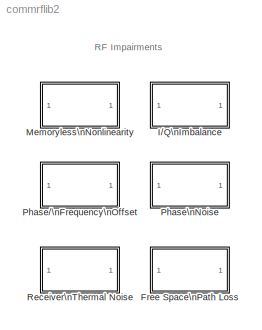
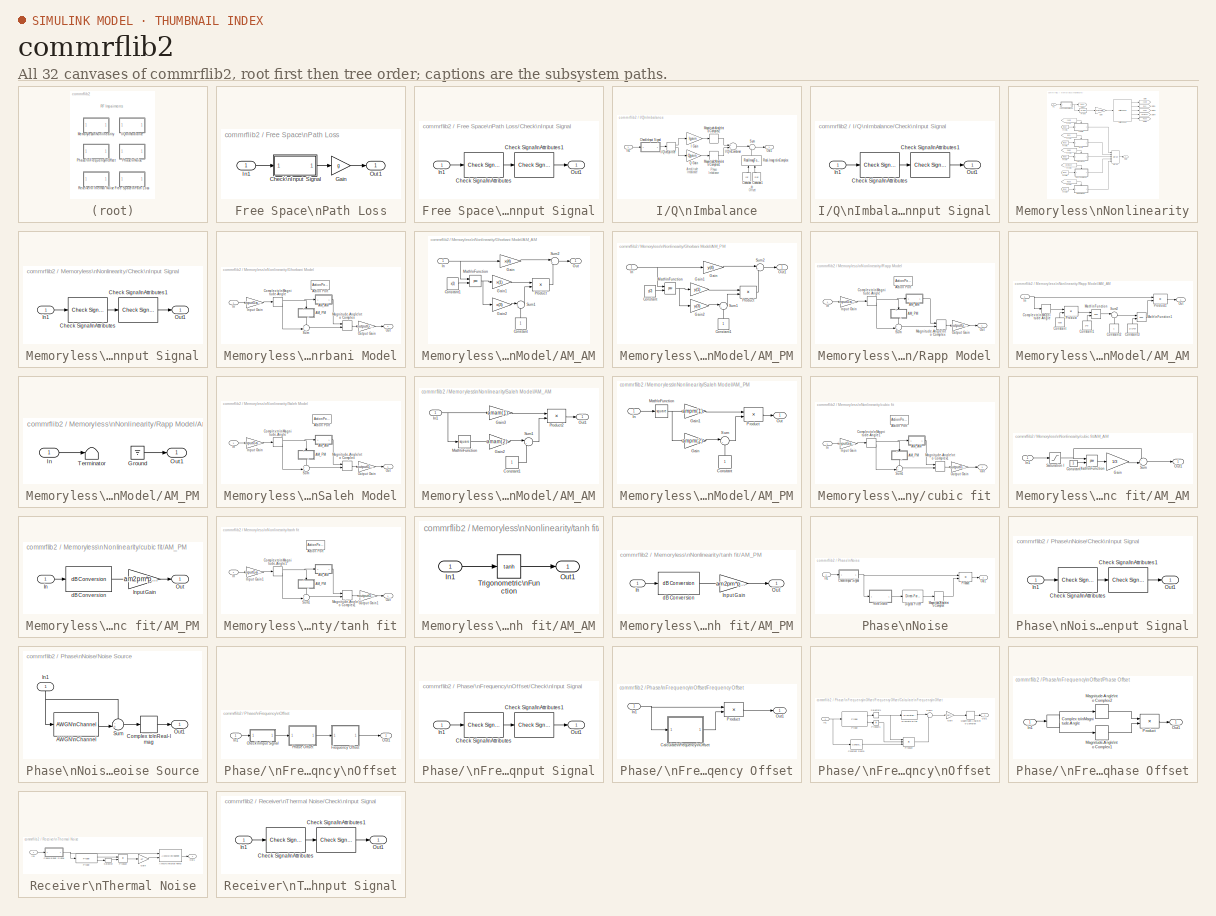
[diagram: thumbnail index - all 32 canvases of the model, root first then tree order]
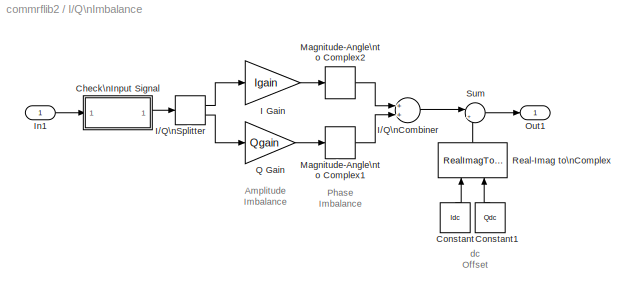
MODEL commrflib2
KIND library
BLOCK [SubSystem] Free Space\nPath Loss
  MaskCallbackString = if strcmp(get_param(gcb,'mode'),'Decibels'),\n\n	set_param(gcb,'maskvisibilities',{'on' 'on' 'off' 'off'});\n\nelse\n\n	set_param(gcb,'maskvisibilities',{'on' 'off' 'on' 'on'});\n\nend|||
  MaskDescription = Reduce the amplitude of the input signal by the amount specified.  The loss can be specified directly using the \"Decibels\" mode, or indirectly using the \"Distance and Frequency\" mode.\n\nThe reciprocal of the loss is applied as a gain, e.g., a loss of +20 dB, which reduces the signal by a factor of 10, corresponds to a gain value of 0.1.\n\nNote:  The decibel amount shown on the mask is rounde...<+28ch>
  MaskDisplay = fprintf(s)
  MaskEnableString = on,on,on,on
  MaskHelp = helpview(commbhelp)
  MaskIconFrame = on
  MaskIconOpaque = on
  MaskIconRotate = none
  MaskIconUnits = autoscale
  MaskInitialization = if mode == 1\n\n	loss = 10.^(0.05*dB);\n\nelse\n\n	c = 299792458;\n\n	loss = 4*pi*d*1e3*fc*1e6/c;\n\nend\n\ng = 1/loss;\n\nlossdB = 20*log10(loss);\n\n\n\nif isempty(dB) | (sum(size(dB)) > 2),\n\n	dB = 0; g = 0;\n\n	s = ['Free Space\\nPath Loss'];\n\nelse\n\n	s = sprintf('Free Space\\nPath Loss\\n%0.0f dB',lossdB);\n\nend
  MaskPromptString = Mode:|Loss (dB):|Distance (km):|Carrier frequency (MHz):
  MaskStyleString = popup(Decibels|Distance and Frequency),edit,edit,edit
  MaskToolTipString = on,on,on,on
  MaskTunableValueString = on,on,on,on
  MaskType = Free Space Path Loss
  MaskValueString = Distance and Frequency|10|0.100|1920
  MaskVarAliasString = ,,,
  MaskVariables = mode=@1;dB=@2;d=@3;fc=@4;
  MaskVisibilityString = on,off,on,on
  Ports = [1, 1]
  TreatAsAtomicUnit = off
BLOCK [SubSystem] Free Space\nPath Loss/Check\nInput Signal
  MaskDisplay = disp('Check\\nInput Signal');
  MaskIconFrame = on
  MaskIconOpaque = on
  MaskIconRotate = none
  MaskIconUnits = autoscale
  Ports = [1, 1]
  TreatAsAtomicUnit = off
BLOCK [Reference] Free Space\nPath Loss/Check\nInput Signal/Check Signal\nAttributes  REF=dspsigattribs/Check Signal\nAttributes
  Complexity = Complex
  DatatypeCheckMethod = Ignore
  DatatypeGeneral = Boolean
  Dimensions = Column vector (2-D) or scalar
  DimsCheckMethod = Is...
  DtypeFixedSpecific = Any fixed-point
  DtypeFloatSpecific = Any floating-point
  DtypeIntSpecific = Any integer
  Frame = Ignore
  Ports = [1, 1]
  SampleMode = Ignore
  SigAttribCheckMethod = Does not match attributes exactly
  SourceBlock = dspsigattribs/Check Signal\nAttributes
  SourceType = Check Signal Attributes
BLOCK [Reference] Free Space\nPath Loss/Check\nInput Signal/Check Signal\nAttributes1  REF=dspsigattribs/Check Signal\nAttributes
  Complexity = Ignore
  DatatypeCheckMethod = Ignore
  DatatypeGeneral = Boolean
  Dimensions = Vector (1-D or 2-D)
  DimsCheckMethod = Is...
  DtypeFixedSpecific = Any fixed-point
  DtypeFloatSpecific = Any floating-point
  DtypeIntSpecific = Any integer
  Frame = Sample-based
  Ports = [1, 1]
  SampleMode = Ignore
  SigAttribCheckMethod = Matches attributes exactly
  SourceBlock = dspsigattribs/Check Signal\nAttributes
  SourceType = Check Signal Attributes
BLOCK [Inport] Free Space\nPath Loss/Check\nInput Signal/In1
  IconDisplay = Port number
BLOCK [Outport] Free Space\nPath Loss/Check\nInput Signal/Out1
  IconDisplay = Port number
BLOCK [Gain] Free Space\nPath Loss/Gain
  Gain = g
BLOCK [Inport] Free Space\nPath Loss/In1
  IconDisplay = Port number
BLOCK [Outport] Free Space\nPath Loss/Out1
  IconDisplay = Port number
BLOCK [SubSystem] I//Q\nImbalance
  MaskCallbackString = |||
  MaskDescription = Complex baseband model of the signal impairments caused by imbalances between in-phase and quadrature receiver components.
  MaskDisplay = disp('I/Q\\nImbalance');
  MaskEnableString = on,on,on,on
  MaskHelp = helpview(commbhelp)
  MaskIconFrame = on
  MaskIconOpaque = on
  MaskIconRotate = none
  MaskIconUnits = autoscale
  MaskInitialization = Igain = 10.^(0.5*[ampImbal]*.05);\nQgain = 10.^(0.5*[-ampImbal]*.05);\n
  MaskPromptString = I/Q amplitude imbalance (dB):|I/Q phase imbalance (deg):|I dc offset:|Q dc offset:
  MaskStyleString = edit,edit,edit,edit
  MaskToolTipString = on,on,on,on
  MaskTunableValueString = on,on,on,on
  MaskType = I/Q Imbalance
  MaskValueString = 0|0|0|0
  MaskVarAliasString = ,,,
  MaskVariables = ampImbal=@1;phsImbal=@2;Idc=@3;Qdc=@4;
  MaskVisibilityString = on,on,on,on
  Ports = [1, 1]
  TreatAsAtomicUnit = off
BLOCK [SubSystem] I//Q\nImbalance/Check\nInput Signal
  MaskDisplay = disp('Check\\nInput Signal');
  MaskIconFrame = on
  MaskIconOpaque = on
  MaskIconRotate = none
  MaskIconUnits = autoscale
  Ports = [1, 1]
  TreatAsAtomicUnit = off
BLOCK [Reference] I//Q\nImbalance/Check\nInput Signal/Check Signal\nAttributes  REF=dspsigattribs/Check Signal\nAttributes
  Complexity = Complex
  DatatypeCheckMethod = Ignore
  DatatypeGeneral = Boolean
  Dimensions = Column vector (2-D) or scalar
  DimsCheckMethod = Is...
  DtypeFixedSpecific = Any fixed-point
  DtypeFloatSpecific = Any floating-point
  DtypeIntSpecific = Any integer
  Frame = Ignore
  Ports = [1, 1]
  SampleMode = Ignore
  SigAttribCheckMethod = Does not match attributes exactly
  SourceBlock = dspsigattribs/Check Signal\nAttributes
  SourceType = Check Signal Attributes
BLOCK [Reference] I//Q\nImbalance/Check\nInput Signal/Check Signal\nAttributes1  REF=dspsigattribs/Check Signal\nAttributes
  Complexity = Ignore
  DatatypeCheckMethod = Ignore
  DatatypeGeneral = Boolean
  Dimensions = Vector (1-D or 2-D)
  DimsCheckMethod = Is...
  DtypeFixedSpecific = Any fixed-point
  DtypeFloatSpecific = Any floating-point
  DtypeIntSpecific = Any integer
  Frame = Sample-based
  Ports = [1, 1]
  SampleMode = Ignore
  SigAttribCheckMethod = Matches attributes exactly
  SourceBlock = dspsigattribs/Check Signal\nAttributes
  SourceType = Check Signal Attributes
BLOCK [Inport] I//Q\nImbalance/Check\nInput Signal/In1
  IconDisplay = Port number
BLOCK [Outport] I//Q\nImbalance/Check\nInput Signal/Out1
  IconDisplay = Port number
BLOCK [Constant] I//Q\nImbalance/Constant
  Value = Idc
BLOCK [Constant] I//Q\nImbalance/Constant1
  Value = Qdc
BLOCK [Gain] I//Q\nImbalance/I Gain
  Gain = Igain
BLOCK [Sum] I//Q\nImbalance/I//Q\nCombiner
  Ports = [2, 1]
BLOCK [ComplexToRealImag] I//Q\nImbalance/I//Q\nSplitter
  Output = Real and imag
  Ports = [1, 2]
BLOCK [Inport] I//Q\nImbalance/In1
  IconDisplay = Port number
BLOCK [MagnitudeAngleToComplex] I//Q\nImbalance/Magnitude-Angle\nto Complex1
  ConstantPart = pi/2+0.5*phsImbal*pi/180
  Input = Magnitude
  Ports = [1, 1]
BLOCK [MagnitudeAngleToComplex] I//Q\nImbalance/Magnitude-Angle\nto Complex2
  ConstantPart = -0.5*phsImbal*pi/180
  Input = Magnitude
  Ports = [1, 1]
BLOCK [Outport] I//Q\nImbalance/Out1
  IconDisplay = Port number
BLOCK [Gain] I//Q\nImbalance/Q Gain
  Gain = Qgain
BLOCK [RealImagToComplex] I//Q\nImbalance/Real-Imag to\nComplex
  Input = Real and imag
  Ports = [2, 1]
BLOCK [Sum] I//Q\nImbalance/Sum
  IconShape = round
  Inputs = |++
  Ports = [2, 1]
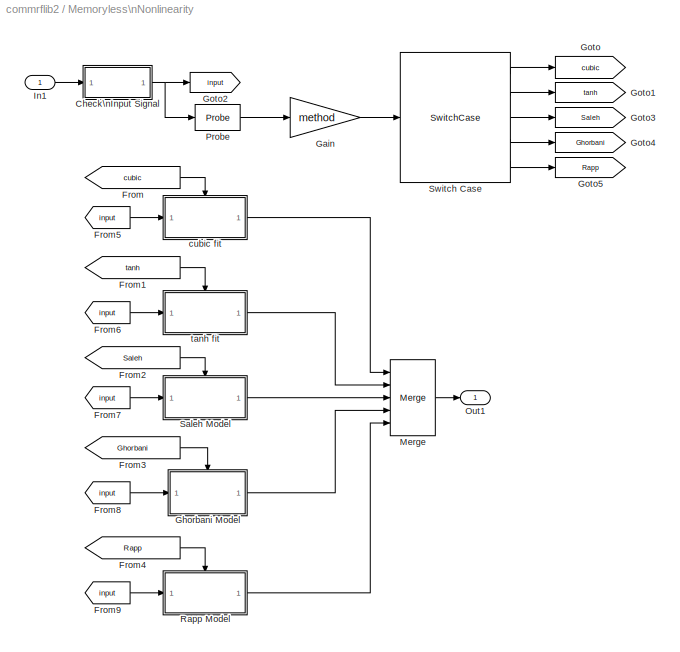
BLOCK [SubSystem] Memoryless\nNonlinearity
  MaskCallbackString = model_type = get_param(gcb,'model_select');\n\nswitch model_type\n\ncase 'Cubic polynomial',\n\n	set_param(gcb,'maskvisibilities',{'on' 'on' 'off' 'on' 'on' 'off' 'off' 'off' 'off' 'off' 'off' 'off'});\n\ncase 'Hyperbolic tangent',\n\n	set_param(gcb,'maskvisibilities',{'on' 'on' 'off' 'on' 'on' 'off' 'off' 'off' 'off' 'off' 'off' 'off'});\n\ncase 'Saleh model',\n\n	set_param(gcb,'maskvisibilities'...<+354ch>
  MaskDescription = Complex baseband model of memoryless nonlinearity.  \n\nTwo of the five methods (Cubic Polynomial and Hyperbolic Tangent) fit curves to measured data provided by the gain and third order intercept point (IIP3) parameters.  \n\nThe other three methods use models originated by Saleh, Ghorbani, and Rapp.  The Saleh and Ghorbani models are based on normalized nonlinear transfer functions.  Use the Inp...<+105ch>
  MaskDisplay = disp(str);
  MaskEnableString = on,on,on,on,on,on,on,on,on,on,on,on
  MaskHelp = helpview(commbhelp)
  MaskIconFrame = on
  MaskIconOpaque = on
  MaskIconRotate = none
  MaskIconUnits = autoscale
  MaskInitialization = switch model_select\ncase 'Cubic polynomial'\n    str = ['Cubic\\nPolynomial'];\n    method = 1;\n	c1 = 10^(linGaindB/20);\n    inputGain = sqrt(3/(10^((iip3-30)/10)));\n    outputGain = c1/inputGain;\ncase 'Hyperbolic tangent'\n    str = ['Hyperbolic\\nTangent'];\n    method = 2;\n	c1 = 10^(linGaindB/20);\n    inputGain = sqrt(3/(10^((iip3-30)/10)));\n    outputGain = c1/inputGain;\ncase 'Saleh m...<+400ch>
  MaskPromptString = Method:|Linear gain (dB):|Input scaling (dB):|IIP3 (dBm):|AM/PM conversion (degrees per dB):|AM/AM parameters [alpha beta]:|AM/PM parameters [alpha beta]:|AM/AM parameters [x1 x2 x3 x4]:|AM/PM parameters [y1 y2 y3 y4]:|Smoothness factor:|Output scaling (dB):|Output saturation level:
  MaskSelfModifiable = on
  MaskStyleString = popup(Cubic polynomial|Hyperbolic tangent|Saleh model|Ghorbani model|Rapp model),edit,edit,edit,edit,edit,edit,edit,edit,edit,edit,edit
  MaskToolTipString = on,on,on,on,on,on,on,on,on,on,on,on
  MaskTunableValueString = on,on,on,on,on,on,on,on,on,on,on,on
  MaskType = Memoryless Nonlinearity
  MaskValueString = Cubic polynomial|0|0|30|0|[2.1587 1.1517]|[4.0033 9.1040]|[8.1081 1.5413 6.5202 -0.0718]|[4.6645 2.0965 10.88 -0.003]|0.5|0|1
  MaskVarAliasString = ,,,,,,,,,,,
  MaskVariables = model_select=&1;linGaindB=@2;GindB=@3;iip3=@4;am2pm=@5;amam=@6;ampm=@7;x=@8;y=@9;p=@10;GoutdB=@11;vsat=@12;
  MaskVisibilityString = on,on,off,on,on,off,off,off,off,off,off,off
  Ports = [1, 1]
  TreatAsAtomicUnit = off
BLOCK [SubSystem] Memoryless\nNonlinearity/Check\nInput Signal
  MaskDisplay = disp('Check\\nInput Signal');
  MaskIconFrame = on
  MaskIconOpaque = on
  MaskIconRotate = none
  MaskIconUnits = autoscale
  Ports = [1, 1]
  TreatAsAtomicUnit = off
BLOCK [Reference] Memoryless\nNonlinearity/Check\nInput Signal/Check Signal\nAttributes  REF=dspsigattribs/Check Signal\nAttributes
  Complexity = Complex
  DatatypeCheckMethod = Ignore
  DatatypeGeneral = Boolean
  Dimensions = Column vector (2-D) or scalar
  DimsCheckMethod = Is...
  DtypeFixedSpecific = Any fixed-point
  DtypeFloatSpecific = Any floating-point
  DtypeIntSpecific = Any integer
  Frame = Ignore
  Ports = [1, 1]
  SampleMode = Ignore
  SigAttribCheckMethod = Does not match attributes exactly
  SourceBlock = dspsigattribs/Check Signal\nAttributes
  SourceType = Check Signal Attributes
BLOCK [Reference] Memoryless\nNonlinearity/Check\nInput Signal/Check Signal\nAttributes1  REF=dspsigattribs/Check Signal\nAttributes
  Complexity = Ignore
  DatatypeCheckMethod = Ignore
  DatatypeGeneral = Boolean
  Dimensions = Vector (1-D or 2-D)
  DimsCheckMethod = Is...
  DtypeFixedSpecific = Any fixed-point
  DtypeFloatSpecific = Any floating-point
  DtypeIntSpecific = Any integer
  Frame = Sample-based
  Ports = [1, 1]
  SampleMode = Ignore
  SigAttribCheckMethod = Matches attributes exactly
  SourceBlock = dspsigattribs/Check Signal\nAttributes
  SourceType = Check Signal Attributes
BLOCK [Inport] Memoryless\nNonlinearity/Check\nInput Signal/In1
  IconDisplay = Port number
BLOCK [Outport] Memoryless\nNonlinearity/Check\nInput Signal/Out1
  IconDisplay = Port number
BLOCK [From] Memoryless\nNonlinearity/From
  CloseFcn = tagdialog Close
  GotoTag = cubic
BLOCK [From] Memoryless\nNonlinearity/From1
  CloseFcn = tagdialog Close
  GotoTag = tanh
BLOCK [From] Memoryless\nNonlinearity/From2
  CloseFcn = tagdialog Close
  GotoTag = Saleh
BLOCK [From] Memoryless\nNonlinearity/From3
  CloseFcn = tagdialog Close
  GotoTag = Ghorbani
BLOCK [From] Memoryless\nNonlinearity/From4
  CloseFcn = tagdialog Close
  GotoTag = Rapp
BLOCK [From] Memoryless\nNonlinearity/From5
  CloseFcn = tagdialog Close
  GotoTag = input
BLOCK [From] Memoryless\nNonlinearity/From6
  CloseFcn = tagdialog Close
  GotoTag = input
BLOCK [From] Memoryless\nNonlinearity/From7
  CloseFcn = tagdialog Close
  GotoTag = input
BLOCK [From] Memoryless\nNonlinearity/From8
  CloseFcn = tagdialog Close
  GotoTag = input
BLOCK [From] Memoryless\nNonlinearity/From9
  CloseFcn = tagdialog Close
  GotoTag = input
BLOCK [Gain] Memoryless\nNonlinearity/Gain
  Gain = method
BLOCK [SubSystem] Memoryless\nNonlinearity/Ghorbani Model
  Ports = [1, 1, 0, 0, 0, 0, 0, 1]
  TreatAsAtomicUnit = on
BLOCK [SubSystem] Memoryless\nNonlinearity/Ghorbani Model/AM_AM
  MaskDisplay = disp('AM/AM')
  MaskIconFrame = on
  MaskIconOpaque = on
  MaskIconRotate = none
  MaskIconUnits = autoscale
  Ports = [1, 1]
  TreatAsAtomicUnit = off
BLOCK [Constant] Memoryless\nNonlinearity/Ghorbani Model/AM_AM/Constant
BLOCK [Constant] Memoryless\nNonlinearity/Ghorbani Model/AM_AM/Constant1
  Value = x(2)
BLOCK [Gain] Memoryless\nNonlinearity/Ghorbani Model/AM_AM/Gain
  Gain = x(4)
BLOCK [Gain] Memoryless\nNonlinearity/Ghorbani Model/AM_AM/Gain1
  Gain = x(1)
BLOCK [Gain] Memoryless\nNonlinearity/Ghorbani Model/AM_AM/Gain2
  Gain = x(3)
BLOCK [Inport] Memoryless\nNonlinearity/Ghorbani Model/AM_AM/In
  IconDisplay = Port number
BLOCK [Math] Memoryless\nNonlinearity/Ghorbani Model/AM_AM/Math\nFunction
  Operator = pow
  Ports = [2, 1]
BLOCK [Outport] Memoryless\nNonlinearity/Ghorbani Model/AM_AM/Out
  IconDisplay = Port number
BLOCK [Product] Memoryless\nNonlinearity/Ghorbani Model/AM_AM/Product
  Inputs = */
  Ports = [2, 1]
  RndMeth = Floor
BLOCK [Sum] Memoryless\nNonlinearity/Ghorbani Model/AM_AM/Sum1
  IconShape = round
  Inputs = |++
  Ports = [2, 1]
BLOCK [Sum] Memoryless\nNonlinearity/Ghorbani Model/AM_AM/Sum2
  IconShape = round
  Inputs = |++
  Ports = [2, 1]
BLOCK [SubSystem] Memoryless\nNonlinearity/Ghorbani Model/AM_PM
  MaskDisplay = disp('AM/PM')
  MaskIconFrame = on
  MaskIconOpaque = on
  MaskIconRotate = none
  MaskIconUnits = autoscale
  Ports = [1, 1]
  TreatAsAtomicUnit = off
BLOCK [Constant] Memoryless\nNonlinearity/Ghorbani Model/AM_PM/Constant
  Value = y(2)
BLOCK [Constant] Memoryless\nNonlinearity/Ghorbani Model/AM_PM/Constant1
BLOCK [Gain] Memoryless\nNonlinearity/Ghorbani Model/AM_PM/Gain
  Gain = y(4)
BLOCK [Gain] Memoryless\nNonlinearity/Ghorbani Model/AM_PM/Gain1
  Gain = y(1)
BLOCK [Gain] Memoryless\nNonlinearity/Ghorbani Model/AM_PM/Gain2
  Gain = y(3)
BLOCK [Inport] Memoryless\nNonlinearity/Ghorbani Model/AM_PM/In
  IconDisplay = Port number
BLOCK [Math] Memoryless\nNonlinearity/Ghorbani Model/AM_PM/Math\nFunction
  Operator = pow
  Ports = [2, 1]
BLOCK [Outport] Memoryless\nNonlinearity/Ghorbani Model/AM_PM/Out1
  IconDisplay = Port number
BLOCK [Product] Memoryless\nNonlinearity/Ghorbani Model/AM_PM/Product
  Inputs = */
  Ports = [2, 1]
  RndMeth = Floor
BLOCK [Sum] Memoryless\nNonlinearity/Ghorbani Model/AM_PM/Sum1
  IconShape = round
  Inputs = |++
  Ports = [2, 1]
BLOCK [Sum] Memoryless\nNonlinearity/Ghorbani Model/AM_PM/Sum2
  IconShape = round
  Inputs = |++
  Ports = [2, 1]
BLOCK [ActionPort] Memoryless\nNonlinearity/Ghorbani Model/Action Port
BLOCK [ComplexToMagnitudeAngle] Memoryless\nNonlinearity/Ghorbani Model/Complex to\nMagnitude-Angle
  Output = Magnitude and angle
  Ports = [1, 2]
BLOCK [Inport] Memoryless\nNonlinearity/Ghorbani Model/In
  IconDisplay = Port number
BLOCK [Gain] Memoryless\nNonlinearity/Ghorbani Model/Input Gain
  Gain = inputGain
BLOCK [MagnitudeAngleToComplex] Memoryless\nNonlinearity/Ghorbani Model/Magnitude-Angle\nto Complex
  Input = Magnitude and angle
  Ports = [2, 1]
BLOCK [Outport] Memoryless\nNonlinearity/Ghorbani Model/Out
  IconDisplay = Port number
BLOCK [Gain] Memoryless\nNonlinearity/Ghorbani Model/Output Gain
  Gain = outputGain
BLOCK [Sum] Memoryless\nNonlinearity/Ghorbani Model/Sum
  IconShape = round
  Inputs = ++|
  Ports = [2, 1]
BLOCK [Goto] Memoryless\nNonlinearity/Goto
  GotoTag = cubic
  TagVisibility = local
BLOCK [Goto] Memoryless\nNonlinearity/Goto1
  GotoTag = tanh
  TagVisibility = local
BLOCK [Goto] Memoryless\nNonlinearity/Goto2
  GotoTag = input
  TagVisibility = local
BLOCK [Goto] Memoryless\nNonlinearity/Goto3
  GotoTag = Saleh
  TagVisibility = local
BLOCK [Goto] Memoryless\nNonlinearity/Goto4
  GotoTag = Ghorbani
  TagVisibility = local
BLOCK [Goto] Memoryless\nNonlinearity/Goto5
  GotoTag = Rapp
  TagVisibility = local
BLOCK [Inport] Memoryless\nNonlinearity/In1
  IconDisplay = Port number
BLOCK [Merge] Memoryless\nNonlinearity/Merge
  Inputs = 5
  Ports = [5, 1]
BLOCK [Outport] Memoryless\nNonlinearity/Out1
  IconDisplay = Port number
BLOCK [Probe] Memoryless\nNonlinearity/Probe
  Ports = [1, 1]
  ProbeSampleTime = off
  ProbeWidth = off
BLOCK [SubSystem] Memoryless\nNonlinearity/Rapp Model
  Ports = [1, 1, 0, 0, 0, 0, 0, 1]
  TreatAsAtomicUnit = on
BLOCK [SubSystem] Memoryless\nNonlinearity/Rapp Model/AM_AM
  MaskDisplay = disp('AM/AM')
  MaskIconFrame = on
  MaskIconOpaque = on
  MaskIconRotate = none
  MaskIconUnits = autoscale
  Ports = [1, 1]
  TreatAsAtomicUnit = off
BLOCK [ComplexToMagnitudeAngle] Memoryless\nNonlinearity/Rapp Model/AM_AM/Complex to\nMagnitude-Angle
  Output = Magnitude
  Ports = [1, 1]
BLOCK [Constant] Memoryless\nNonlinearity/Rapp Model/AM_AM/Constant
  Value = vsat
BLOCK [Constant] Memoryless\nNonlinearity/Rapp Model/AM_AM/Constant1
  Value = 2*p
BLOCK [Constant] Memoryless\nNonlinearity/Rapp Model/AM_AM/Constant2
BLOCK [Constant] Memoryless\nNonlinearity/Rapp Model/AM_AM/Constant3
  Value = 1/(2*p)
BLOCK [Inport] Memoryless\nNonlinearity/Rapp Model/AM_AM/In
  IconDisplay = Port number
BLOCK [Math] Memoryless\nNonlinearity/Rapp Model/AM_AM/Math\nFunction
  Operator = pow
  Ports = [2, 1]
BLOCK [Math] Memoryless\nNonlinearity/Rapp Model/AM_AM/Math\nFunction1
  Operator = pow
  Ports = [2, 1]
BLOCK [Outport] Memoryless\nNonlinearity/Rapp Model/AM_AM/Out
  IconDisplay = Port number
BLOCK [Product] Memoryless\nNonlinearity/Rapp Model/AM_AM/Product
  Inputs = */
  Ports = [2, 1]
  RndMeth = Floor
BLOCK [Product] Memoryless\nNonlinearity/Rapp Model/AM_AM/Product1
  Inputs = */
  Ports = [2, 1]
  RndMeth = Floor
BLOCK [Sum] Memoryless\nNonlinearity/Rapp Model/AM_AM/Sum2
  IconShape = round
  Inputs = |++
  Ports = [2, 1]
BLOCK [SubSystem] Memoryless\nNonlinearity/Rapp Model/AM_PM
  MaskDisplay = disp('AM/PM')
  MaskIconFrame = on
  MaskIconOpaque = on
  MaskIconRotate = none
  MaskIconUnits = autoscale
  Ports = [1, 1]
  TreatAsAtomicUnit = off
BLOCK [Ground] Memoryless\nNonlinearity/Rapp Model/AM_PM/Ground
BLOCK [Inport] Memoryless\nNonlinearity/Rapp Model/AM_PM/In
  IconDisplay = Port number
BLOCK [Outport] Memoryless\nNonlinearity/Rapp Model/AM_PM/Out1
  IconDisplay = Port number
BLOCK [Terminator] Memoryless\nNonlinearity/Rapp Model/AM_PM/Terminator
BLOCK [ActionPort] Memoryless\nNonlinearity/Rapp Model/Action Port
BLOCK [ComplexToMagnitudeAngle] Memoryless\nNonlinearity/Rapp Model/Complex to\nMagnitude-Angle
  Output = Magnitude and angle
  Ports = [1, 2]
BLOCK [Inport] Memoryless\nNonlinearity/Rapp Model/In
  IconDisplay = Port number
BLOCK [Gain] Memoryless\nNonlinearity/Rapp Model/Input Gain
  Gain = inputGain
BLOCK [MagnitudeAngleToComplex] Memoryless\nNonlinearity/Rapp Model/Magnitude-Angle\nto Complex
  Input = Magnitude and angle
  Ports = [2, 1]
BLOCK [Outport] Memoryless\nNonlinearity/Rapp Model/Out
  IconDisplay = Port number
BLOCK [Gain] Memoryless\nNonlinearity/Rapp Model/Output Gain
  Gain = outputGain
BLOCK [Sum] Memoryless\nNonlinearity/Rapp Model/Sum
  IconShape = round
  Inputs = ++|
  Ports = [2, 1]
BLOCK [SubSystem] Memoryless\nNonlinearity/Saleh Model
  Ports = [1, 1, 0, 0, 0, 0, 0, 1]
  TreatAsAtomicUnit = on
BLOCK [SubSystem] Memoryless\nNonlinearity/Saleh Model/AM_AM
  MaskDisplay = disp('AM/AM')
  MaskIconFrame = on
  MaskIconOpaque = on
  MaskIconRotate = none
  MaskIconUnits = autoscale
  Ports = [1, 1]
  TreatAsAtomicUnit = off
BLOCK [Constant] Memoryless\nNonlinearity/Saleh Model/AM_AM/Constant1
BLOCK [Gain] Memoryless\nNonlinearity/Saleh Model/AM_AM/Gain2
  Gain = amam(2)
BLOCK [Gain] Memoryless\nNonlinearity/Saleh Model/AM_AM/Gain3
  Gain = amam(1)
BLOCK [Inport] Memoryless\nNonlinearity/Saleh Model/AM_AM/In1
  IconDisplay = Port number
BLOCK [Math] Memoryless\nNonlinearity/Saleh Model/AM_AM/Math\nFunction
  Operator = square
  Ports = [1, 1]
BLOCK [Outport] Memoryless\nNonlinearity/Saleh Model/AM_AM/Out1
  IconDisplay = Port number
BLOCK [Product] Memoryless\nNonlinearity/Saleh Model/AM_AM/Product2
  Inputs = */
  Ports = [2, 1]
  RndMeth = Floor
BLOCK [Sum] Memoryless\nNonlinearity/Saleh Model/AM_AM/Sum1
  IconShape = round
  Inputs = |++
  Ports = [2, 1]
BLOCK [SubSystem] Memoryless\nNonlinearity/Saleh Model/AM_PM
  MaskDisplay = disp('AM/PM')
  MaskIconFrame = on
  MaskIconOpaque = on
  MaskIconRotate = none
  MaskIconUnits = autoscale
  Ports = [1, 1]
  TreatAsAtomicUnit = off
BLOCK [Constant] Memoryless\nNonlinearity/Saleh Model/AM_PM/Constant
BLOCK [Gain] Memoryless\nNonlinearity/Saleh Model/AM_PM/Gain
  Gain = ampm(2)
BLOCK [Gain] Memoryless\nNonlinearity/Saleh Model/AM_PM/Gain1
  Gain = ampm(1)
BLOCK [Inport] Memoryless\nNonlinearity/Saleh Model/AM_PM/In
  IconDisplay = Port number
BLOCK [Math] Memoryless\nNonlinearity/Saleh Model/AM_PM/Math\nFunction
  Operator = square
  Ports = [1, 1]
BLOCK [Outport] Memoryless\nNonlinearity/Saleh Model/AM_PM/Out
  IconDisplay = Port number
BLOCK [Product] Memoryless\nNonlinearity/Saleh Model/AM_PM/Product
  Inputs = */
  Ports = [2, 1]
  RndMeth = Floor
BLOCK [Sum] Memoryless\nNonlinearity/Saleh Model/AM_PM/Sum
  IconShape = round
  Inputs = |++
  Ports = [2, 1]
BLOCK [ActionPort] Memoryless\nNonlinearity/Saleh Model/Action Port
BLOCK [ComplexToMagnitudeAngle] Memoryless\nNonlinearity/Saleh Model/Complex to\nMagnitude-Angle
  Output = Magnitude and angle
  Ports = [1, 2]
BLOCK [Inport] Memoryless\nNonlinearity/Saleh Model/In
  IconDisplay = Port number
BLOCK [Gain] Memoryless\nNonlinearity/Saleh Model/Input Gain
  Gain = inputGain
BLOCK [MagnitudeAngleToComplex] Memoryless\nNonlinearity/Saleh Model/Magnitude-Angle\nto Complex
  Input = Magnitude and angle
  Ports = [2, 1]
BLOCK [Outport] Memoryless\nNonlinearity/Saleh Model/Out
  IconDisplay = Port number
BLOCK [Gain] Memoryless\nNonlinearity/Saleh Model/Output Gain
  Gain = outputGain
BLOCK [Sum] Memoryless\nNonlinearity/Saleh Model/Sum
  IconShape = round
  Inputs = ++|
  Ports = [2, 1]
BLOCK [SwitchCase] Memoryless\nNonlinearity/Switch Case
  CaseConditions = {1 2 3 4 5}
  CaseShowDefault = off
  Ports = [1, 5]
BLOCK [SubSystem] Memoryless\nNonlinearity/cubic fit
  Ports = [1, 1, 0, 0, 0, 0, 0, 1]
  TreatAsAtomicUnit = on
BLOCK [SubSystem] Memoryless\nNonlinearity/cubic fit/AM_AM
  MaskDisplay = disp('AM/AM')
  MaskIconFrame = on
  MaskIconOpaque = on
  MaskIconRotate = none
  MaskIconUnits = autoscale
  Ports = [1, 1]
  TreatAsAtomicUnit = off
BLOCK [Constant] Memoryless\nNonlinearity/cubic fit/AM_AM/Constant
  Value = 3
BLOCK [Gain] Memoryless\nNonlinearity/cubic fit/AM_AM/Gain
  Gain = 1/3
BLOCK [Inport] Memoryless\nNonlinearity/cubic fit/AM_AM/In1
  IconDisplay = Port number
BLOCK [Math] Memoryless\nNonlinearity/cubic fit/AM_AM/Math\nFunction
  Operator = pow
  Ports = [2, 1]
BLOCK [Outport] Memoryless\nNonlinearity/cubic fit/AM_AM/Out1
  IconDisplay = Port number
BLOCK [Saturate] Memoryless\nNonlinearity/cubic fit/AM_AM/Saturation I
  LowerLimit = -1
  UpperLimit = 1
BLOCK [Sum] Memoryless\nNonlinearity/cubic fit/AM_AM/Sum
  IconShape = round
  Inputs = +-|
  Ports = [2, 1]
BLOCK [SubSystem] Memoryless\nNonlinearity/cubic fit/AM_PM
  MaskDisplay = disp('AM/PM')
  MaskIconFrame = on
  MaskIconOpaque = on
  MaskIconRotate = none
  MaskIconUnits = autoscale
  Ports = [1, 1]
  TreatAsAtomicUnit = off
BLOCK [Inport] Memoryless\nNonlinearity/cubic fit/AM_PM/In
  IconDisplay = Port number
BLOCK [Gain] Memoryless\nNonlinearity/cubic fit/AM_PM/Input Gain
  Gain = am2pm*pi/180
BLOCK [Outport] Memoryless\nNonlinearity/cubic fit/AM_PM/Out
  IconDisplay = Port number
BLOCK [Reference] Memoryless\nNonlinearity/cubic fit/AM_PM/dB Conversion  REF=dspmathops/dB Conversion
  Ports = [1, 1]
  R = 1
  SourceBlock = dspmathops/dB Conversion
  SourceType = dB Conversion
  dBtype = dB
  fuzz = on
  intype = Amplitude
BLOCK [ActionPort] Memoryless\nNonlinearity/cubic fit/Action Port
BLOCK [ComplexToMagnitudeAngle] Memoryless\nNonlinearity/cubic fit/Complex to\nMagnitude-Angle1
  Output = Magnitude and angle
  Ports = [1, 2]
BLOCK [Inport] Memoryless\nNonlinearity/cubic fit/In
  IconDisplay = Port number
BLOCK [Gain] Memoryless\nNonlinearity/cubic fit/Input Gain
  Gain = inputGain
BLOCK [MagnitudeAngleToComplex] Memoryless\nNonlinearity/cubic fit/Magnitude-Angle\nto Complex1
  Input = Magnitude and angle
  Ports = [2, 1]
BLOCK [Outport] Memoryless\nNonlinearity/cubic fit/Out
  IconDisplay = Port number
BLOCK [Gain] Memoryless\nNonlinearity/cubic fit/Output Gain
  Gain = outputGain
BLOCK [Sum] Memoryless\nNonlinearity/cubic fit/Sum1
  IconShape = round
  Inputs = ++|
  Ports = [2, 1]
BLOCK [SubSystem] Memoryless\nNonlinearity/tanh fit
  Ports = [1, 1, 0, 0, 0, 0, 0, 1]
  TreatAsAtomicUnit = on
BLOCK [SubSystem] Memoryless\nNonlinearity/tanh fit/AM_AM
  MaskDisplay = disp('AM/AM')
  MaskIconFrame = on
  MaskIconOpaque = on
  MaskIconRotate = none
  MaskIconUnits = autoscale
  Ports = [1, 1]
  TreatAsAtomicUnit = off
BLOCK [Inport] Memoryless\nNonlinearity/tanh fit/AM_AM/In1
  IconDisplay = Port number
BLOCK [Outport] Memoryless\nNonlinearity/tanh fit/AM_AM/Out1
  IconDisplay = Port number
BLOCK [Trigonometry] Memoryless\nNonlinearity/tanh fit/AM_AM/Trigonometric\nFunction
  Operator = tanh
  Ports = [1, 1]
BLOCK [SubSystem] Memoryless\nNonlinearity/tanh fit/AM_PM
  MaskDisplay = disp('AM/PM')
  MaskIconFrame = on
  MaskIconOpaque = on
  MaskIconRotate = none
  MaskIconUnits = autoscale
  Ports = [1, 1]
  TreatAsAtomicUnit = off
BLOCK [Inport] Memoryless\nNonlinearity/tanh fit/AM_PM/In
  IconDisplay = Port number
BLOCK [Gain] Memoryless\nNonlinearity/tanh fit/AM_PM/Input Gain
  Gain = am2pm*pi/180
BLOCK [Outport] Memoryless\nNonlinearity/tanh fit/AM_PM/Out
  IconDisplay = Port number
BLOCK [Reference] Memoryless\nNonlinearity/tanh fit/AM_PM/dB Conversion  REF=dspmathops/dB Conversion
  Ports = [1, 1]
  R = 1
  SourceBlock = dspmathops/dB Conversion
  SourceType = dB Conversion
  dBtype = dB
  fuzz = on
  intype = Amplitude
BLOCK [ActionPort] Memoryless\nNonlinearity/tanh fit/Action Port
BLOCK [ComplexToMagnitudeAngle] Memoryless\nNonlinearity/tanh fit/Complex to\nMagnitude-Angle1
  Output = Magnitude and angle
  Ports = [1, 2]
BLOCK [Inport] Memoryless\nNonlinearity/tanh fit/In
  IconDisplay = Port number
BLOCK [Gain] Memoryless\nNonlinearity/tanh fit/Input Gain1
  Gain = inputGain
BLOCK [MagnitudeAngleToComplex] Memoryless\nNonlinearity/tanh fit/Magnitude-Angle\nto Complex1
  Input = Magnitude and angle
  Ports = [2, 1]
BLOCK [Outport] Memoryless\nNonlinearity/tanh fit/Out
  IconDisplay = Port number
BLOCK [Gain] Memoryless\nNonlinearity/tanh fit/Output Gain1
  Gain = outputGain
BLOCK [Sum] Memoryless\nNonlinearity/tanh fit/Sum1
  IconShape = round
  Inputs = ++|
  Ports = [2, 1]
BLOCK [SubSystem] Phase//\nFrequency\nOffset
  MaskCallbackString = |
  MaskDescription = Complex baseband model of residual phase and frequency offsets.
  MaskDisplay = disp('Phase/\\nFrequency\\nOffset');
  MaskEnableString = on,on
  MaskHelp = helpview(commbhelp)
  MaskIconFrame = on
  MaskIconOpaque = on
  MaskIconRotate = none
  MaskIconUnits = autoscale
  MaskPromptString = Frequency offset (Hz):|Phase offset (deg):
  MaskStyleString = edit,edit
  MaskToolTipString = on,on
  MaskTunableValueString = on,on
  MaskType = Phase/Frequency Offset
  MaskValueString = 0|0
  MaskVarAliasString = ,
  MaskVariables = freqOffset=@1;phaseOffset=@2;
  MaskVisibilityString = on,on
  Ports = [1, 1]
  TreatAsAtomicUnit = off
BLOCK [SubSystem] Phase//\nFrequency\nOffset/Check\nInput Signal
  MaskDisplay = disp('Check\\nInput Signal');
  MaskIconFrame = on
  MaskIconOpaque = on
  MaskIconRotate = none
  MaskIconUnits = autoscale
  Ports = [1, 1]
  TreatAsAtomicUnit = off
BLOCK [Reference] Phase//\nFrequency\nOffset/Check\nInput Signal/Check Signal\nAttributes  REF=dspsigattribs/Check Signal\nAttributes
  Complexity = Complex
  DatatypeCheckMethod = Ignore
  DatatypeGeneral = Boolean
  Dimensions = Column vector (2-D) or scalar
  DimsCheckMethod = Is...
  DtypeFixedSpecific = Any fixed-point
  DtypeFloatSpecific = Any floating-point
  DtypeIntSpecific = Any integer
  Frame = Ignore
  Ports = [1, 1]
  SampleMode = Ignore
  SigAttribCheckMethod = Does not match attributes exactly
  SourceBlock = dspsigattribs/Check Signal\nAttributes
  SourceType = Check Signal Attributes
BLOCK [Reference] Phase//\nFrequency\nOffset/Check\nInput Signal/Check Signal\nAttributes1  REF=dspsigattribs/Check Signal\nAttributes
  Complexity = Ignore
  DatatypeCheckMethod = Ignore
  DatatypeGeneral = Boolean
  Dimensions = Vector (1-D or 2-D)
  DimsCheckMethod = Is...
  DtypeFixedSpecific = Any fixed-point
  DtypeFloatSpecific = Any floating-point
  DtypeIntSpecific = Any integer
  Frame = Sample-based
  Ports = [1, 1]
  SampleMode = Ignore
  SigAttribCheckMethod = Matches attributes exactly
  SourceBlock = dspsigattribs/Check Signal\nAttributes
  SourceType = Check Signal Attributes
BLOCK [Inport] Phase//\nFrequency\nOffset/Check\nInput Signal/In1
  IconDisplay = Port number
BLOCK [Outport] Phase//\nFrequency\nOffset/Check\nInput Signal/Out1
  IconDisplay = Port number
BLOCK [SubSystem] Phase//\nFrequency\nOffset/Frequency Offset
  MaskDisplay = disp('Frequency\\nOffset');
  MaskIconFrame = on
  MaskIconOpaque = on
  MaskIconRotate = none
  MaskIconUnits = autoscale
  Ports = [1, 1]
  TreatAsAtomicUnit = off
BLOCK [SubSystem] Phase//\nFrequency\nOffset/Frequency Offset/Calculate\nFrequency\nOffset
  MaskDisplay = disp('Calculate\\nFrequency\\nOffset');
  MaskIconFrame = on
  MaskIconOpaque = on
  MaskIconRotate = none
  MaskIconUnits = autoscale
  Ports = [1, 1]
  TreatAsAtomicUnit = off
BLOCK [Reference] Phase//\nFrequency\nOffset/Frequency Offset/Calculate\nFrequency\nOffset/Constant Ramp  REF=dspsrcs4/Constant Ramp
  L = Rows
  Offset = 0
  Ports = [1, 1]
  Slope = 1
  SourceBlock = dspsrcs4/Constant Ramp
  SourceType = Constant Ramp
BLOCK [DiscreteFilter] Phase//\nFrequency\nOffset/Frequency Offset/Calculate\nFrequency\nOffset/Discrete Filter
  Denominator = [1 -1]
  Numerator = [0 1]
  SampleTime = -1
BLOCK [Gain] Phase//\nFrequency\nOffset/Frequency Offset/Calculate\nFrequency\nOffset/Gain
  Gain = 2*pi*freqOffset
BLOCK [Inport] Phase//\nFrequency\nOffset/Frequency Offset/Calculate\nFrequency\nOffset/In1
  IconDisplay = Port number
BLOCK [MagnitudeAngleToComplex] Phase//\nFrequency\nOffset/Frequency Offset/Calculate\nFrequency\nOffset/Magnitude-Angle\nto Complex
  ConstantPart = 1
  Input = Angle
  Ports = [1, 1]
BLOCK [Outport] Phase//\nFrequency\nOffset/Frequency Offset/Calculate\nFrequency\nOffset/Out1
  IconDisplay = Port number
BLOCK [Probe] Phase//\nFrequency\nOffset/Frequency Offset/Calculate\nFrequency\nOffset/Probe
  Ports = [1, 2]
  ProbeComplexSignal = off
  ProbeSignalDimensions = on
  ProbeWidth = off
BLOCK [Product] Phase//\nFrequency\nOffset/Frequency Offset/Calculate\nFrequency\nOffset/Product
  Inputs = */*
  Ports = [3, 1]
  RndMeth = Floor
BLOCK [Product] Phase//\nFrequency\nOffset/Frequency Offset/Calculate\nFrequency\nOffset/Product1
  Inputs = 1
  Ports = [1, 1]
  RndMeth = Floor
BLOCK [Selector] Phase//\nFrequency\nOffset/Frequency Offset/Calculate\nFrequency\nOffset/Selector1
  Elements = [1 ]
  InputPortWidth = 2
  Ports = [1, 1]
BLOCK [Sum] Phase//\nFrequency\nOffset/Frequency Offset/Calculate\nFrequency\nOffset/Sum1
  IconShape = round
  Inputs = |++
  Ports = [2, 1]
BLOCK [Inport] Phase//\nFrequency\nOffset/Frequency Offset/In1
  IconDisplay = Port number
BLOCK [Outport] Phase//\nFrequency\nOffset/Frequency Offset/Out1
  IconDisplay = Port number
BLOCK [Product] Phase//\nFrequency\nOffset/Frequency Offset/Product
  Ports = [2, 1]
  RndMeth = Floor
BLOCK [Inport] Phase//\nFrequency\nOffset/In1
  IconDisplay = Port number
BLOCK [Outport] Phase//\nFrequency\nOffset/Out1
  IconDisplay = Port number
BLOCK [SubSystem] Phase//\nFrequency\nOffset/Phase Offset
  MaskDisplay = disp('Phase\\nOffset');
  MaskIconFrame = on
  MaskIconOpaque = on
  MaskIconRotate = none
  MaskIconUnits = autoscale
  Ports = [1, 1]
  TreatAsAtomicUnit = off
BLOCK [ComplexToMagnitudeAngle] Phase//\nFrequency\nOffset/Phase Offset/Complex to\nMagnitude-Angle
  Output = Magnitude and angle
  Ports = [1, 2]
BLOCK [Inport] Phase//\nFrequency\nOffset/Phase Offset/In1
  IconDisplay = Port number
BLOCK [MagnitudeAngleToComplex] Phase//\nFrequency\nOffset/Phase Offset/Magnitude-Angle\nto Complex1
  ConstantPart = 1
  Input = Angle
  Ports = [1, 1]
BLOCK [MagnitudeAngleToComplex] Phase//\nFrequency\nOffset/Phase Offset/Magnitude-Angle\nto Complex2
  ConstantPart = phaseOffset*pi/180
  Input = Magnitude
  Ports = [1, 1]
BLOCK [Outport] Phase//\nFrequency\nOffset/Phase Offset/Out1
  IconDisplay = Port number
BLOCK [Product] Phase//\nFrequency\nOffset/Phase Offset/Product
  Ports = [2, 1]
  RndMeth = Floor
BLOCK [SubSystem] Phase\nNoise
  AttributesFormatString = \\n
  MaskCallbackString = ||
  MaskDescription = Complex baseband model of receiver phase noise.\n\nThe output of this block is noise with a spectrum characterized by a 1/f slope.  The level of the spectrum is specified by the noise power contained in a one hertz bandwidth offset from the carrier by a certain frequency.
  MaskDisplay = disp('Phase\\nNoise');
  MaskEnableString = on,on,on
  MaskHelp = helpview(commbhelp)
  MaskIconFrame = on
  MaskIconOpaque = on
  MaskIconRotate = none
  MaskIconUnits = autoscale
  MaskInitialization = if PhNs>0,\n	error('Phase noise level should be negative.');\nend\nnum = sqrt(2*pi*Fo*10^((PhNs)/10));\nif num>.1,\n	warning('Current parameters in phase noise block may produce inaccurate results.');\nend\nnum_taps = 64;\nden = zeros(1,num_taps);\nden(1) = 1;\nfor idx = 2:num_taps\n   den(idx) = (idx - 2.5) * den(idx-1) / (idx-1);\nend\n
  MaskPromptString = Phase noise level (dBc/Hz):|Frequency offset (Hz):|Initial seed:
  MaskSelfModifiable = on
  MaskStyleString = edit,edit,edit
  MaskToolTipString = on,on,on
  MaskTunableValueString = on,on,on
  MaskType = Phase Noise
  MaskValueString = -120|100|2137
  MaskVarAliasString = ,,
  MaskVariables = PhNs=@1;Fo=@2;seed=@3;
  MaskVisibilityString = on,on,on
  Ports = [1, 1]
  TreatAsAtomicUnit = off
BLOCK [SubSystem] Phase\nNoise/Check\nInput Signal
  MaskDisplay = disp('Check\\nInput Signal');
  MaskIconFrame = on
  MaskIconOpaque = on
  MaskIconRotate = none
  MaskIconUnits = autoscale
  Ports = [1, 1]
  TreatAsAtomicUnit = off
BLOCK [Reference] Phase\nNoise/Check\nInput Signal/Check Signal\nAttributes  REF=dspsigattribs/Check Signal\nAttributes
  Complexity = Complex
  DatatypeCheckMethod = Ignore
  DatatypeGeneral = Boolean
  Dimensions = Column vector (2-D) or scalar
  DimsCheckMethod = Is...
  DtypeFixedSpecific = Any fixed-point
  DtypeFloatSpecific = Any floating-point
  DtypeIntSpecific = Any integer
  Frame = Ignore
  Ports = [1, 1]
  SampleMode = Ignore
  SigAttribCheckMethod = Does not match attributes exactly
  SourceBlock = dspsigattribs/Check Signal\nAttributes
  SourceType = Check Signal Attributes
BLOCK [Reference] Phase\nNoise/Check\nInput Signal/Check Signal\nAttributes1  REF=dspsigattribs/Check Signal\nAttributes
  Complexity = Ignore
  DatatypeCheckMethod = Ignore
  DatatypeGeneral = Boolean
  Dimensions = Vector (1-D or 2-D)
  DimsCheckMethod = Is...
  DtypeFixedSpecific = Any fixed-point
  DtypeFloatSpecific = Any floating-point
  DtypeIntSpecific = Any integer
  Frame = Sample-based
  Ports = [1, 1]
  SampleMode = Ignore
  SigAttribCheckMethod = Matches attributes exactly
  SourceBlock = dspsigattribs/Check Signal\nAttributes
  SourceType = Check Signal Attributes
BLOCK [Inport] Phase\nNoise/Check\nInput Signal/In1
  IconDisplay = Port number
BLOCK [Outport] Phase\nNoise/Check\nInput Signal/Out1
  IconDisplay = Port number
BLOCK [Reference] Phase\nNoise/Digital Filter  REF=dsparch3/Direct-Form II\nTranspose Filter
  Ports = [1, 1]
  SourceBlock = dsparch3/Direct-Form II\nTranspose Filter
  SourceType = Direct-Form II Transpose Filter
  den = den
  ic = 0
  num = num
BLOCK [Inport] Phase\nNoise/In1
  IconDisplay = Port number
BLOCK [MagnitudeAngleToComplex] Phase\nNoise/Magnitude-Angle\nto Complex
  ConstantPart = 1
  Input = Angle
  Ports = [1, 1]
BLOCK [SubSystem] Phase\nNoise/Noise Source
  MaskDisplay = disp('Noise Source')
  MaskIconFrame = on
  MaskIconOpaque = on
  MaskIconRotate = none
  MaskIconUnits = autoscale
  Ports = [1, 1]
  TreatAsAtomicUnit = off
BLOCK [Reference] Phase\nNoise/Noise Source/AWGN\nChannel  REF=commchan2/AWGN\nChannel
  EsNodB = 10
  Ports = [1, 1]
  Ps = 1
  SNRdB = 0
  SourceBlock = commchan2/AWGN\nChannel
  SourceType = AWGN Channel
  Tsym = 1
  noiseMode = Variance from mask
  seed = seed
  variance = 2
BLOCK [ComplexToRealImag] Phase\nNoise/Noise Source/Complex to\nReal-Imag
  Output = Real
  Ports = [1, 1]
BLOCK [Inport] Phase\nNoise/Noise Source/In1
  IconDisplay = Port number
BLOCK [Outport] Phase\nNoise/Noise Source/Out1
  IconDisplay = Port number
BLOCK [Sum] Phase\nNoise/Noise Source/Sum
  IconShape = round
  Inputs = -+|
  Ports = [2, 1]
BLOCK [Outport] Phase\nNoise/Out1
  IconDisplay = Port number
BLOCK [Product] Phase\nNoise/Product
  Ports = [2, 1]
  RndMeth = Floor
BLOCK [SubSystem] Receiver\nThermal Noise
  MaskCallbackString = method = get_param(gcb,'method');\n\nswitch method\n\ncase 'Noise temperature',\n\n	set_param(gcb,'maskvisibilities',{'on' 'on' 'off' 'off' 'on'});\n\ncase 'Noise figure',\n\n	set_param(gcb,'maskvisibilities',{'on' 'off' 'on' 'off' 'on'});\n\ncase 'Noise factor',\n\n	set_param(gcb,'maskvisibilities',{'on' 'off' 'off' 'on' 'on'});\n\nend||||
  MaskDescription = Complex baseband model of receiver thermal noise.\n\nThe amount of noise added to the input signal may be specified either in terms of noise temperature, noise figure, or noise factor.
  MaskDisplay = disp(str);
  MaskEnableString = on,on,on,on,on
  MaskHelp = helpview(commbhelp)
  MaskIconFrame = on
  MaskIconOpaque = on
  MaskIconRotate = none
  MaskIconUnits = autoscale
  MaskInitialization = k=1.380650e-23; % Boltzmann's constant, J/K\n\nswitch method\ncase 'Noise temperature',\n	T = ntemp;\n	str = ['Noise\\nTemperature\\n' num2str(ntemp) ' K'];\ncase 'Noise figure',\n	nfactor = 10.^(0.1*nfigure);\n	T = 290*(nfactor-1);\n	str = ['Noise\\nFigure\\n' num2str(nfigure) ' dB'];\ncase 'Noise factor',\n	T = 290*(nfactor-1);\n	str = ['Noise\\nFactor\\n' num2str(nfactor)];\nend\n\nkT=k*T;\n
  MaskPromptString = Specification method:|Noise temperature (K):|Noise figure (dB):|Noise factor:|Initial seed:
  MaskStyleString = popup(Noise temperature|Noise figure|Noise factor),edit,edit,edit,edit
  MaskToolTipString = on,on,on,on,on
  MaskTunableValueString = on,on,on,on,on
  MaskType = Receiver Thermal Noise
  MaskValueString = Noise temperature|290|3.01|2|67987
  MaskVarAliasString = ,,,,
  MaskVariables = method=&1;ntemp=@2;nfigure=@3;nfactor=@4;seed=@5;
  MaskVisibilityString = on,on,off,off,on
  Ports = [1, 1]
  TreatAsAtomicUnit = off
BLOCK [Reference] Receiver\nThermal Noise/AWGN\nNoise Temp  REF=commchan2/AWGN\nChannel
  EbNodB = 10
  EsNodB = 10
  Ports = [2, 1]
  Ps = 1
  SNRdB = 10
  SourceBlock = commchan2/AWGN\nChannel
  SourceType = AWGN Channel
  Tsym = 1
  bitsPerSym = 1
  noiseMode = Variance from port
  seed = seed
  variance = var
BLOCK [SubSystem] Receiver\nThermal Noise/Check\nInput Signal
  MaskDisplay = disp('Check\\nInput Signal');
  MaskIconFrame = on
  MaskIconOpaque = on
  MaskIconRotate = none
  MaskIconUnits = autoscale
  Ports = [1, 1]
  TreatAsAtomicUnit = off
BLOCK [Reference] Receiver\nThermal Noise/Check\nInput Signal/Check Signal\nAttributes  REF=dspsigattribs/Check Signal\nAttributes
  Complexity = Complex
  DatatypeCheckMethod = Ignore
  DatatypeGeneral = Boolean
  Dimensions = Column vector (2-D) or scalar
  DimsCheckMethod = Is...
  DtypeFixedSpecific = Any fixed-point
  DtypeFloatSpecific = Any floating-point
  DtypeIntSpecific = Any integer
  Frame = Ignore
  Ports = [1, 1]
  SampleMode = Ignore
  SigAttribCheckMethod = Does not match attributes exactly
  SourceBlock = dspsigattribs/Check Signal\nAttributes
  SourceType = Check Signal Attributes
BLOCK [Reference] Receiver\nThermal Noise/Check\nInput Signal/Check Signal\nAttributes1  REF=dspsigattribs/Check Signal\nAttributes
  Complexity = Ignore
  DatatypeCheckMethod = Ignore
  DatatypeGeneral = Boolean
  Dimensions = Vector (1-D or 2-D)
  DimsCheckMethod = Is...
  DtypeFixedSpecific = Any fixed-point
  DtypeFloatSpecific = Any floating-point
  DtypeIntSpecific = Any integer
  Frame = Sample-based
  Ports = [1, 1]
  SampleMode = Ignore
  SigAttribCheckMethod = Matches attributes exactly
  SourceBlock = dspsigattribs/Check Signal\nAttributes
  SourceType = Check Signal Attributes
BLOCK [Inport] Receiver\nThermal Noise/Check\nInput Signal/In1
  IconDisplay = Port number
BLOCK [Outport] Receiver\nThermal Noise/Check\nInput Signal/Out1
  IconDisplay = Port number
BLOCK [Gain] Receiver\nThermal Noise/Gain
  Gain = kT
BLOCK [Inport] Receiver\nThermal Noise/In1
  IconDisplay = Port number
BLOCK [Outport] Receiver\nThermal Noise/Out1
  IconDisplay = Port number
BLOCK [Probe] Receiver\nThermal Noise/Probe
  Ports = [1, 2]
  ProbeComplexSignal = off
BLOCK [Product] Receiver\nThermal Noise/Product
  Inputs = */
  Ports = [2, 1]
  RndMeth = Floor
BLOCK [Selector] Receiver\nThermal Noise/Selector
  InputPortWidth = 2
  Ports = [1, 1]
ANNOTATION (root): RF Impairments
ANNOTATION I//Q\nImbalance: Amplitude\nImbalance
ANNOTATION I//Q\nImbalance: Phase\nImbalance
ANNOTATION I//Q\nImbalance: dc\nOffset
LINE Free Space\nPath Loss/Check\nInput Signal/Check Signal\nAttributes1:1 -> Free Space\nPath Loss/Check\nInput Signal/Out1:1
LINE Free Space\nPath Loss/Check\nInput Signal/Check Signal\nAttributes:1 -> Free Space\nPath Loss/Check\nInput Signal/Check Signal\nAttributes1:1
LINE Free Space\nPath Loss/Check\nInput Signal/In1:1 -> Free Space\nPath Loss/Check\nInput Signal/Check Signal\nAttributes:1
LINE Free Space\nPath Loss/Check\nInput Signal:1 -> Free Space\nPath Loss/Gain:1
LINE Free Space\nPath Loss/Gain:1 -> Free Space\nPath Loss/Out1:1
LINE Free Space\nPath Loss/In1:1 -> Free Space\nPath Loss/Check\nInput Signal:1
LINE I//Q\nImbalance/Check\nInput Signal/Check Signal\nAttributes1:1 -> I//Q\nImbalance/Check\nInput Signal/Out1:1
LINE I//Q\nImbalance/Check\nInput Signal/Check Signal\nAttributes:1 -> I//Q\nImbalance/Check\nInput Signal/Check Signal\nAttributes1:1
LINE I//Q\nImbalance/Check\nInput Signal/In1:1 -> I//Q\nImbalance/Check\nInput Signal/Check Signal\nAttributes:1
LINE I//Q\nImbalance/Check\nInput Signal:1 -> I//Q\nImbalance/I//Q\nSplitter:1
LINE I//Q\nImbalance/Constant1:1 -> I//Q\nImbalance/Real-Imag to\nComplex:2
LINE I//Q\nImbalance/Constant:1 -> I//Q\nImbalance/Real-Imag to\nComplex:1
LINE I//Q\nImbalance/I Gain:1 -> I//Q\nImbalance/Magnitude-Angle\nto Complex2:1
LINE I//Q\nImbalance/I//Q\nCombiner:1 -> I//Q\nImbalance/Sum:1
LINE I//Q\nImbalance/I//Q\nSplitter:1 -> I//Q\nImbalance/I Gain:1
LINE I//Q\nImbalance/I//Q\nSplitter:2 -> I//Q\nImbalance/Q Gain:1
LINE I//Q\nImbalance/In1:1 -> I//Q\nImbalance/Check\nInput Signal:1
LINE I//Q\nImbalance/Magnitude-Angle\nto Complex1:1 -> I//Q\nImbalance/I//Q\nCombiner:2
LINE I//Q\nImbalance/Magnitude-Angle\nto Complex2:1 -> I//Q\nImbalance/I//Q\nCombiner:1
LINE I//Q\nImbalance/Q Gain:1 -> I//Q\nImbalance/Magnitude-Angle\nto Complex1:1
LINE I//Q\nImbalance/Real-Imag to\nComplex:1 -> I//Q\nImbalance/Sum:2
LINE I//Q\nImbalance/Sum:1 -> I//Q\nImbalance/Out1:1
LINE Memoryless\nNonlinearity/Check\nInput Signal/Check Signal\nAttributes1:1 -> Memoryless\nNonlinearity/Check\nInput Signal/Out1:1
LINE Memoryless\nNonlinearity/Check\nInput Signal/Check Signal\nAttributes:1 -> Memoryless\nNonlinearity/Check\nInput Signal/Check Signal\nAttributes1:1
LINE Memoryless\nNonlinearity/Check\nInput Signal/In1:1 -> Memoryless\nNonlinearity/Check\nInput Signal/Check Signal\nAttributes:1
NET Memoryless\nNonlinearity/Check\nInput Signal:1 -> Memoryless\nNonlinearity/Goto2:1, Memoryless\nNonlinearity/Probe:1
LINE Memoryless\nNonlinearity/From1:1 -> Memoryless\nNonlinearity/tanh fit:ifaction
LINE Memoryless\nNonlinearity/From2:1 -> Memoryless\nNonlinearity/Saleh Model:ifaction
LINE Memoryless\nNonlinearity/From3:1 -> Memoryless\nNonlinearity/Ghorbani Model:ifaction
LINE Memoryless\nNonlinearity/From4:1 -> Memoryless\nNonlinearity/Rapp Model:ifaction
LINE Memoryless\nNonlinearity/From5:1 -> Memoryless\nNonlinearity/cubic fit:1
LINE Memoryless\nNonlinearity/From6:1 -> Memoryless\nNonlinearity/tanh fit:1
LINE Memoryless\nNonlinearity/From7:1 -> Memoryless\nNonlinearity/Saleh Model:1
LINE Memoryless\nNonlinearity/From8:1 -> Memoryless\nNonlinearity/Ghorbani Model:1
LINE Memoryless\nNonlinearity/From9:1 -> Memoryless\nNonlinearity/Rapp Model:1
LINE Memoryless\nNonlinearity/From:1 -> Memoryless\nNonlinearity/cubic fit:ifaction
LINE Memoryless\nNonlinearity/Gain:1 -> Memoryless\nNonlinearity/Switch Case:1
LINE Memoryless\nNonlinearity/Ghorbani Model/AM_AM/Constant1:1 -> Memoryless\nNonlinearity/Ghorbani Model/AM_AM/Math\nFunction:2
LINE Memoryless\nNonlinearity/Ghorbani Model/AM_AM/Constant:1 -> Memoryless\nNonlinearity/Ghorbani Model/AM_AM/Sum1:2
LINE Memoryless\nNonlinearity/Ghorbani Model/AM_AM/Gain1:1 -> Memoryless\nNonlinearity/Ghorbani Model/AM_AM/Product:1
LINE Memoryless\nNonlinearity/Ghorbani Model/AM_AM/Gain2:1 -> Memoryless\nNonlinearity/Ghorbani Model/AM_AM/Sum1:1
LINE Memoryless\nNonlinearity/Ghorbani Model/AM_AM/Gain:1 -> Memoryless\nNonlinearity/Ghorbani Model/AM_AM/Sum2:1
NET Memoryless\nNonlinearity/Ghorbani Model/AM_AM/In:1 -> Memoryless\nNonlinearity/Ghorbani Model/AM_AM/Gain:1, Memoryless\nNonlinearity/Ghorbani Model/AM_AM/Math\nFunction:1
NET Memoryless\nNonlinearity/Ghorbani Model/AM_AM/Math\nFunction:1 -> Memoryless\nNonlinearity/Ghorbani Model/AM_AM/Gain1:1, Memoryless\nNonlinearity/Ghorbani Model/AM_AM/Gain2:1
LINE Memoryless\nNonlinearity/Ghorbani Model/AM_AM/Product:1 -> Memoryless\nNonlinearity/Ghorbani Model/AM_AM/Sum2:2
LINE Memoryless\nNonlinearity/Ghorbani Model/AM_AM/Sum1:1 -> Memoryless\nNonlinearity/Ghorbani Model/AM_AM/Product:2
LINE Memoryless\nNonlinearity/Ghorbani Model/AM_AM/Sum2:1 -> Memoryless\nNonlinearity/Ghorbani Model/AM_AM/Out:1
LINE Memoryless\nNonlinearity/Ghorbani Model/AM_AM:1 -> Memoryless\nNonlinearity/Ghorbani Model/Magnitude-Angle\nto Complex:1
LINE Memoryless\nNonlinearity/Ghorbani Model/AM_PM/Constant1:1 -> Memoryless\nNonlinearity/Ghorbani Model/AM_PM/Sum1:2
LINE Memoryless\nNonlinearity/Ghorbani Model/AM_PM/Constant:1 -> Memoryless\nNonlinearity/Ghorbani Model/AM_PM/Math\nFunction:2
LINE Memoryless\nNonlinearity/Ghorbani Model/AM_PM/Gain1:1 -> Memoryless\nNonlinearity/Ghorbani Model/AM_PM/Product:1
LINE Memoryless\nNonlinearity/Ghorbani Model/AM_PM/Gain2:1 -> Memoryless\nNonlinearity/Ghorbani Model/AM_PM/Sum1:1
LINE Memoryless\nNonlinearity/Ghorbani Model/AM_PM/Gain:1 -> Memoryless\nNonlinearity/Ghorbani Model/AM_PM/Sum2:1
NET Memoryless\nNonlinearity/Ghorbani Model/AM_PM/In:1 -> Memoryless\nNonlinearity/Ghorbani Model/AM_PM/Gain:1, Memoryless\nNonlinearity/Ghorbani Model/AM_PM/Math\nFunction:1
NET Memoryless\nNonlinearity/Ghorbani Model/AM_PM/Math\nFunction:1 -> Memoryless\nNonlinearity/Ghorbani Model/AM_PM/Gain1:1, Memoryless\nNonlinearity/Ghorbani Model/AM_PM/Gain2:1
LINE Memoryless\nNonlinearity/Ghorbani Model/AM_PM/Product:1 -> Memoryless\nNonlinearity/Ghorbani Model/AM_PM/Sum2:2
LINE Memoryless\nNonlinearity/Ghorbani Model/AM_PM/Sum1:1 -> Memoryless\nNonlinearity/Ghorbani Model/AM_PM/Product:2
LINE Memoryless\nNonlinearity/Ghorbani Model/AM_PM/Sum2:1 -> Memoryless\nNonlinearity/Ghorbani Model/AM_PM/Out1:1
LINE Memoryless\nNonlinearity/Ghorbani Model/AM_PM:1 -> Memoryless\nNonlinearity/Ghorbani Model/Sum:1
NET Memoryless\nNonlinearity/Ghorbani Model/Complex to\nMagnitude-Angle:1 -> Memoryless\nNonlinearity/Ghorbani Model/AM_AM:1, Memoryless\nNonlinearity/Ghorbani Model/AM_PM:1
LINE Memoryless\nNonlinearity/Ghorbani Model/Complex to\nMagnitude-Angle:2 -> Memoryless\nNonlinearity/Ghorbani Model/Sum:2
LINE Memoryless\nNonlinearity/Ghorbani Model/In:1 -> Memoryless\nNonlinearity/Ghorbani Model/Input Gain:1
LINE Memoryless\nNonlinearity/Ghorbani Model/Input Gain:1 -> Memoryless\nNonlinearity/Ghorbani Model/Complex to\nMagnitude-Angle:1
LINE Memoryless\nNonlinearity/Ghorbani Model/Magnitude-Angle\nto Complex:1 -> Memoryless\nNonlinearity/Ghorbani Model/Output Gain:1
LINE Memoryless\nNonlinearity/Ghorbani Model/Output Gain:1 -> Memoryless\nNonlinearity/Ghorbani Model/Out:1
LINE Memoryless\nNonlinearity/Ghorbani Model/Sum:1 -> Memoryless\nNonlinearity/Ghorbani Model/Magnitude-Angle\nto Complex:2
LINE Memoryless\nNonlinearity/Ghorbani Model:1 -> Memoryless\nNonlinearity/Merge:4
LINE Memoryless\nNonlinearity/In1:1 -> Memoryless\nNonlinearity/Check\nInput Signal:1
LINE Memoryless\nNonlinearity/Merge:1 -> Memoryless\nNonlinearity/Out1:1
LINE Memoryless\nNonlinearity/Probe:1 -> Memoryless\nNonlinearity/Gain:1
LINE Memoryless\nNonlinearity/Rapp Model/AM_AM/Complex to\nMagnitude-Angle:1 -> Memoryless\nNonlinearity/Rapp Model/AM_AM/Product:1
LINE Memoryless\nNonlinearity/Rapp Model/AM_AM/Constant1:1 -> Memoryless\nNonlinearity/Rapp Model/AM_AM/Math\nFunction:2
LINE Memoryless\nNonlinearity/Rapp Model/AM_AM/Constant2:1 -> Memoryless\nNonlinearity/Rapp Model/AM_AM/Sum2:2
LINE Memoryless\nNonlinearity/Rapp Model/AM_AM/Constant3:1 -> Memoryless\nNonlinearity/Rapp Model/AM_AM/Math\nFunction1:2
LINE Memoryless\nNonlinearity/Rapp Model/AM_AM/Constant:1 -> Memoryless\nNonlinearity/Rapp Model/AM_AM/Product:2
NET Memoryless\nNonlinearity/Rapp Model/AM_AM/In:1 -> Memoryless\nNonlinearity/Rapp Model/AM_AM/Complex to\nMagnitude-Angle:1, Memoryless\nNonlinearity/Rapp Model/AM_AM/Product1:1
LINE Memoryless\nNonlinearity/Rapp Model/AM_AM/Math\nFunction1:1 -> Memoryless\nNonlinearity/Rapp Model/AM_AM/Product1:2
LINE Memoryless\nNonlinearity/Rapp Model/AM_AM/Math\nFunction:1 -> Memoryless\nNonlinearity/Rapp Model/AM_AM/Sum2:1
LINE Memoryless\nNonlinearity/Rapp Model/AM_AM/Product1:1 -> Memoryless\nNonlinearity/Rapp Model/AM_AM/Out:1
LINE Memoryless\nNonlinearity/Rapp Model/AM_AM/Product:1 -> Memoryless\nNonlinearity/Rapp Model/AM_AM/Math\nFunction:1
LINE Memoryless\nNonlinearity/Rapp Model/AM_AM/Sum2:1 -> Memoryless\nNonlinearity/Rapp Model/AM_AM/Math\nFunction1:1
LINE Memoryless\nNonlinearity/Rapp Model/AM_AM:1 -> Memoryless\nNonlinearity/Rapp Model/Magnitude-Angle\nto Complex:1
LINE Memoryless\nNonlinearity/Rapp Model/AM_PM/Ground:1 -> Memoryless\nNonlinearity/Rapp Model/AM_PM/Out1:1
LINE Memoryless\nNonlinearity/Rapp Model/AM_PM/In:1 -> Memoryless\nNonlinearity/Rapp Model/AM_PM/Terminator:1
LINE Memoryless\nNonlinearity/Rapp Model/AM_PM:1 -> Memoryless\nNonlinearity/Rapp Model/Sum:1
NET Memoryless\nNonlinearity/Rapp Model/Complex to\nMagnitude-Angle:1 -> Memoryless\nNonlinearity/Rapp Model/AM_AM:1, Memoryless\nNonlinearity/Rapp Model/AM_PM:1
LINE Memoryless\nNonlinearity/Rapp Model/Complex to\nMagnitude-Angle:2 -> Memoryless\nNonlinearity/Rapp Model/Sum:2
LINE Memoryless\nNonlinearity/Rapp Model/In:1 -> Memoryless\nNonlinearity/Rapp Model/Input Gain:1
LINE Memoryless\nNonlinearity/Rapp Model/Input Gain:1 -> Memoryless\nNonlinearity/Rapp Model/Complex to\nMagnitude-Angle:1
LINE Memoryless\nNonlinearity/Rapp Model/Magnitude-Angle\nto Complex:1 -> Memoryless\nNonlinearity/Rapp Model/Output Gain:1
LINE Memoryless\nNonlinearity/Rapp Model/Output Gain:1 -> Memoryless\nNonlinearity/Rapp Model/Out:1
LINE Memoryless\nNonlinearity/Rapp Model/Sum:1 -> Memoryless\nNonlinearity/Rapp Model/Magnitude-Angle\nto Complex:2
LINE Memoryless\nNonlinearity/Rapp Model:1 -> Memoryless\nNonlinearity/Merge:5
LINE Memoryless\nNonlinearity/Saleh Model/AM_AM/Constant1:1 -> Memoryless\nNonlinearity/Saleh Model/AM_AM/Sum1:2
LINE Memoryless\nNonlinearity/Saleh Model/AM_AM/Gain2:1 -> Memoryless\nNonlinearity/Saleh Model/AM_AM/Sum1:1
LINE Memoryless\nNonlinearity/Saleh Model/AM_AM/Gain3:1 -> Memoryless\nNonlinearity/Saleh Model/AM_AM/Product2:1
NET Memoryless\nNonlinearity/Saleh Model/AM_AM/In1:1 -> Memoryless\nNonlinearity/Saleh Model/AM_AM/Gain3:1, Memoryless\nNonlinearity/Saleh Model/AM_AM/Math\nFunction:1
LINE Memoryless\nNonlinearity/Saleh Model/AM_AM/Math\nFunction:1 -> Memoryless\nNonlinearity/Saleh Model/AM_AM/Gain2:1
LINE Memoryless\nNonlinearity/Saleh Model/AM_AM/Product2:1 -> Memoryless\nNonlinearity/Saleh Model/AM_AM/Out1:1
LINE Memoryless\nNonlinearity/Saleh Model/AM_AM/Sum1:1 -> Memoryless\nNonlinearity/Saleh Model/AM_AM/Product2:2
LINE Memoryless\nNonlinearity/Saleh Model/AM_AM:1 -> Memoryless\nNonlinearity/Saleh Model/Magnitude-Angle\nto Complex:1
LINE Memoryless\nNonlinearity/Saleh Model/AM_PM/Constant:1 -> Memoryless\nNonlinearity/Saleh Model/AM_PM/Sum:2
LINE Memoryless\nNonlinearity/Saleh Model/AM_PM/Gain1:1 -> Memoryless\nNonlinearity/Saleh Model/AM_PM/Product:1
LINE Memoryless\nNonlinearity/Saleh Model/AM_PM/Gain:1 -> Memoryless\nNonlinearity/Saleh Model/AM_PM/Sum:1
LINE Memoryless\nNonlinearity/Saleh Model/AM_PM/In:1 -> Memoryless\nNonlinearity/Saleh Model/AM_PM/Math\nFunction:1
NET Memoryless\nNonlinearity/Saleh Model/AM_PM/Math\nFunction:1 -> Memoryless\nNonlinearity/Saleh Model/AM_PM/Gain1:1, Memoryless\nNonlinearity/Saleh Model/AM_PM/Gain:1
LINE Memoryless\nNonlinearity/Saleh Model/AM_PM/Product:1 -> Memoryless\nNonlinearity/Saleh Model/AM_PM/Out:1
LINE Memoryless\nNonlinearity/Saleh Model/AM_PM/Sum:1 -> Memoryless\nNonlinearity/Saleh Model/AM_PM/Product:2
LINE Memoryless\nNonlinearity/Saleh Model/AM_PM:1 -> Memoryless\nNonlinearity/Saleh Model/Sum:1
NET Memoryless\nNonlinearity/Saleh Model/Complex to\nMagnitude-Angle:1 -> Memoryless\nNonlinearity/Saleh Model/AM_AM:1, Memoryless\nNonlinearity/Saleh Model/AM_PM:1
LINE Memoryless\nNonlinearity/Saleh Model/Complex to\nMagnitude-Angle:2 -> Memoryless\nNonlinearity/Saleh Model/Sum:2
LINE Memoryless\nNonlinearity/Saleh Model/In:1 -> Memoryless\nNonlinearity/Saleh Model/Input Gain:1
LINE Memoryless\nNonlinearity/Saleh Model/Input Gain:1 -> Memoryless\nNonlinearity/Saleh Model/Complex to\nMagnitude-Angle:1
LINE Memoryless\nNonlinearity/Saleh Model/Magnitude-Angle\nto Complex:1 -> Memoryless\nNonlinearity/Saleh Model/Output Gain:1
LINE Memoryless\nNonlinearity/Saleh Model/Output Gain:1 -> Memoryless\nNonlinearity/Saleh Model/Out:1
LINE Memoryless\nNonlinearity/Saleh Model/Sum:1 -> Memoryless\nNonlinearity/Saleh Model/Magnitude-Angle\nto Complex:2
LINE Memoryless\nNonlinearity/Saleh Model:1 -> Memoryless\nNonlinearity/Merge:3
LINE Memoryless\nNonlinearity/Switch Case:1 -> Memoryless\nNonlinearity/Goto:1
LINE Memoryless\nNonlinearity/Switch Case:2 -> Memoryless\nNonlinearity/Goto1:1
LINE Memoryless\nNonlinearity/Switch Case:3 -> Memoryless\nNonlinearity/Goto3:1
LINE Memoryless\nNonlinearity/Switch Case:4 -> Memoryless\nNonlinearity/Goto4:1
LINE Memoryless\nNonlinearity/Switch Case:5 -> Memoryless\nNonlinearity/Goto5:1
LINE Memoryless\nNonlinearity/cubic fit/AM_AM/Constant:1 -> Memoryless\nNonlinearity/cubic fit/AM_AM/Math\nFunction:2
LINE Memoryless\nNonlinearity/cubic fit/AM_AM/Gain:1 -> Memoryless\nNonlinearity/cubic fit/AM_AM/Sum:2
LINE Memoryless\nNonlinearity/cubic fit/AM_AM/In1:1 -> Memoryless\nNonlinearity/cubic fit/AM_AM/Saturation I:1
LINE Memoryless\nNonlinearity/cubic fit/AM_AM/Math\nFunction:1 -> Memoryless\nNonlinearity/cubic fit/AM_AM/Gain:1
NET Memoryless\nNonlinearity/cubic fit/AM_AM/Saturation I:1 -> Memoryless\nNonlinearity/cubic fit/AM_AM/Math\nFunction:1, Memoryless\nNonlinearity/cubic fit/AM_AM/Sum:1
LINE Memoryless\nNonlinearity/cubic fit/AM_AM/Sum:1 -> Memoryless\nNonlinearity/cubic fit/AM_AM/Out1:1
LINE Memoryless\nNonlinearity/cubic fit/AM_AM:1 -> Memoryless\nNonlinearity/cubic fit/Magnitude-Angle\nto Complex1:1
LINE Memoryless\nNonlinearity/cubic fit/AM_PM/In:1 -> Memoryless\nNonlinearity/cubic fit/AM_PM/dB Conversion:1
LINE Memoryless\nNonlinearity/cubic fit/AM_PM/Input Gain:1 -> Memoryless\nNonlinearity/cubic fit/AM_PM/Out:1
LINE Memoryless\nNonlinearity/cubic fit/AM_PM/dB Conversion:1 -> Memoryless\nNonlinearity/cubic fit/AM_PM/Input Gain:1
LINE Memoryless\nNonlinearity/cubic fit/AM_PM:1 -> Memoryless\nNonlinearity/cubic fit/Sum1:1
NET Memoryless\nNonlinearity/cubic fit/Complex to\nMagnitude-Angle1:1 -> Memoryless\nNonlinearity/cubic fit/AM_AM:1, Memoryless\nNonlinearity/cubic fit/AM_PM:1
LINE Memoryless\nNonlinearity/cubic fit/Complex to\nMagnitude-Angle1:2 -> Memoryless\nNonlinearity/cubic fit/Sum1:2
LINE Memoryless\nNonlinearity/cubic fit/In:1 -> Memoryless\nNonlinearity/cubic fit/Input Gain:1
LINE Memoryless\nNonlinearity/cubic fit/Input Gain:1 -> Memoryless\nNonlinearity/cubic fit/Complex to\nMagnitude-Angle1:1
LINE Memoryless\nNonlinearity/cubic fit/Magnitude-Angle\nto Complex1:1 -> Memoryless\nNonlinearity/cubic fit/Output Gain:1
LINE Memoryless\nNonlinearity/cubic fit/Output Gain:1 -> Memoryless\nNonlinearity/cubic fit/Out:1
LINE Memoryless\nNonlinearity/cubic fit/Sum1:1 -> Memoryless\nNonlinearity/cubic fit/Magnitude-Angle\nto Complex1:2
LINE Memoryless\nNonlinearity/cubic fit:1 -> Memoryless\nNonlinearity/Merge:1
LINE Memoryless\nNonlinearity/tanh fit/AM_AM/In1:1 -> Memoryless\nNonlinearity/tanh fit/AM_AM/Trigonometric\nFunction:1
LINE Memoryless\nNonlinearity/tanh fit/AM_AM/Trigonometric\nFunction:1 -> Memoryless\nNonlinearity/tanh fit/AM_AM/Out1:1
LINE Memoryless\nNonlinearity/tanh fit/AM_AM:1 -> Memoryless\nNonlinearity/tanh fit/Magnitude-Angle\nto Complex1:1
LINE Memoryless\nNonlinearity/tanh fit/AM_PM/In:1 -> Memoryless\nNonlinearity/tanh fit/AM_PM/dB Conversion:1
LINE Memoryless\nNonlinearity/tanh fit/AM_PM/Input Gain:1 -> Memoryless\nNonlinearity/tanh fit/AM_PM/Out:1
LINE Memoryless\nNonlinearity/tanh fit/AM_PM/dB Conversion:1 -> Memoryless\nNonlinearity/tanh fit/AM_PM/Input Gain:1
LINE Memoryless\nNonlinearity/tanh fit/AM_PM:1 -> Memoryless\nNonlinearity/tanh fit/Sum1:1
NET Memoryless\nNonlinearity/tanh fit/Complex to\nMagnitude-Angle1:1 -> Memoryless\nNonlinearity/tanh fit/AM_AM:1, Memoryless\nNonlinearity/tanh fit/AM_PM:1
LINE Memoryless\nNonlinearity/tanh fit/Complex to\nMagnitude-Angle1:2 -> Memoryless\nNonlinearity/tanh fit/Sum1:2
LINE Memoryless\nNonlinearity/tanh fit/In:1 -> Memoryless\nNonlinearity/tanh fit/Input Gain1:1
LINE Memoryless\nNonlinearity/tanh fit/Input Gain1:1 -> Memoryless\nNonlinearity/tanh fit/Complex to\nMagnitude-Angle1:1
LINE Memoryless\nNonlinearity/tanh fit/Magnitude-Angle\nto Complex1:1 -> Memoryless\nNonlinearity/tanh fit/Output Gain1:1
LINE Memoryless\nNonlinearity/tanh fit/Output Gain1:1 -> Memoryless\nNonlinearity/tanh fit/Out:1
LINE Memoryless\nNonlinearity/tanh fit/Sum1:1 -> Memoryless\nNonlinearity/tanh fit/Magnitude-Angle\nto Complex1:2
LINE Memoryless\nNonlinearity/tanh fit:1 -> Memoryless\nNonlinearity/Merge:2
LINE Phase//\nFrequency\nOffset/Check\nInput Signal/Check Signal\nAttributes1:1 -> Phase//\nFrequency\nOffset/Check\nInput Signal/Out1:1
LINE Phase//\nFrequency\nOffset/Check\nInput Signal/Check Signal\nAttributes:1 -> Phase//\nFrequency\nOffset/Check\nInput Signal/Check Signal\nAttributes1:1
LINE Phase//\nFrequency\nOffset/Check\nInput Signal/In1:1 -> Phase//\nFrequency\nOffset/Check\nInput Signal/Check Signal\nAttributes:1
LINE Phase//\nFrequency\nOffset/Check\nInput Signal:1 -> Phase//\nFrequency\nOffset/Phase Offset:1
LINE Phase//\nFrequency\nOffset/Frequency Offset/Calculate\nFrequency\nOffset/Constant Ramp:1 -> Phase//\nFrequency\nOffset/Frequency Offset/Calculate\nFrequency\nOffset/Product:3
LINE Phase//\nFrequency\nOffset/Frequency Offset/Calculate\nFrequency\nOffset/Discrete Filter:1 -> Phase//\nFrequency\nOffset/Frequency Offset/Calculate\nFrequency\nOffset/Sum1:1
LINE Phase//\nFrequency\nOffset/Frequency Offset/Calculate\nFrequency\nOffset/Gain:1 -> Phase//\nFrequency\nOffset/Frequency Offset/Calculate\nFrequency\nOffset/Magnitude-Angle\nto Complex:1
NET Phase//\nFrequency\nOffset/Frequency Offset/Calculate\nFrequency\nOffset/In1:1 -> Phase//\nFrequency\nOffset/Frequency Offset/Calculate\nFrequency\nOffset/Constant Ramp:1, Phase//\nFrequency\nOffset/Frequency Offset/Calculate\nFrequency\nOffset/Probe:1
LINE Phase//\nFrequency\nOffset/Frequency Offset/Calculate\nFrequency\nOffset/Magnitude-Angle\nto Complex:1 -> Phase//\nFrequency\nOffset/Frequency Offset/Calculate\nFrequency\nOffset/Out1:1
LINE Phase//\nFrequency\nOffset/Frequency Offset/Calculate\nFrequency\nOffset/Probe:1 -> Phase//\nFrequency\nOffset/Frequency Offset/Calculate\nFrequency\nOffset/Selector1:1
LINE Phase//\nFrequency\nOffset/Frequency Offset/Calculate\nFrequency\nOffset/Probe:2 -> Phase//\nFrequency\nOffset/Frequency Offset/Calculate\nFrequency\nOffset/Product1:1
LINE Phase//\nFrequency\nOffset/Frequency Offset/Calculate\nFrequency\nOffset/Product1:1 -> Phase//\nFrequency\nOffset/Frequency Offset/Calculate\nFrequency\nOffset/Product:2
LINE Phase//\nFrequency\nOffset/Frequency Offset/Calculate\nFrequency\nOffset/Product:1 -> Phase//\nFrequency\nOffset/Frequency Offset/Calculate\nFrequency\nOffset/Sum1:2
NET Phase//\nFrequency\nOffset/Frequency Offset/Calculate\nFrequency\nOffset/Selector1:1 -> Phase//\nFrequency\nOffset/Frequency Offset/Calculate\nFrequency\nOffset/Discrete Filter:1, Phase//\nFrequency\nOffset/Frequency Offset/Calculate\nFrequency\nOffset/Product:1
LINE Phase//\nFrequency\nOffset/Frequency Offset/Calculate\nFrequency\nOffset/Sum1:1 -> Phase//\nFrequency\nOffset/Frequency Offset/Calculate\nFrequency\nOffset/Gain:1
LINE Phase//\nFrequency\nOffset/Frequency Offset/Calculate\nFrequency\nOffset:1 -> Phase//\nFrequency\nOffset/Frequency Offset/Product:2
NET Phase//\nFrequency\nOffset/Frequency Offset/In1:1 -> Phase//\nFrequency\nOffset/Frequency Offset/Calculate\nFrequency\nOffset:1, Phase//\nFrequency\nOffset/Frequency Offset/Product:1
LINE Phase//\nFrequency\nOffset/Frequency Offset/Product:1 -> Phase//\nFrequency\nOffset/Frequency Offset/Out1:1
LINE Phase//\nFrequency\nOffset/Frequency Offset:1 -> Phase//\nFrequency\nOffset/Out1:1
LINE Phase//\nFrequency\nOffset/In1:1 -> Phase//\nFrequency\nOffset/Check\nInput Signal:1
LINE Phase//\nFrequency\nOffset/Phase Offset/Complex to\nMagnitude-Angle:1 -> Phase//\nFrequency\nOffset/Phase Offset/Magnitude-Angle\nto Complex2:1
LINE Phase//\nFrequency\nOffset/Phase Offset/Complex to\nMagnitude-Angle:2 -> Phase//\nFrequency\nOffset/Phase Offset/Magnitude-Angle\nto Complex1:1
LINE Phase//\nFrequency\nOffset/Phase Offset/In1:1 -> Phase//\nFrequency\nOffset/Phase Offset/Complex to\nMagnitude-Angle:1
LINE Phase//\nFrequency\nOffset/Phase Offset/Magnitude-Angle\nto Complex1:1 -> Phase//\nFrequency\nOffset/Phase Offset/Product:2
LINE Phase//\nFrequency\nOffset/Phase Offset/Magnitude-Angle\nto Complex2:1 -> Phase//\nFrequency\nOffset/Phase Offset/Product:1
LINE Phase//\nFrequency\nOffset/Phase Offset/Product:1 -> Phase//\nFrequency\nOffset/Phase Offset/Out1:1
LINE Phase//\nFrequency\nOffset/Phase Offset:1 -> Phase//\nFrequency\nOffset/Frequency Offset:1
LINE Phase\nNoise/Check\nInput Signal/Check Signal\nAttributes1:1 -> Phase\nNoise/Check\nInput Signal/Out1:1
LINE Phase\nNoise/Check\nInput Signal/Check Signal\nAttributes:1 -> Phase\nNoise/Check\nInput Signal/Check Signal\nAttributes1:1
LINE Phase\nNoise/Check\nInput Signal/In1:1 -> Phase\nNoise/Check\nInput Signal/Check Signal\nAttributes:1
NET Phase\nNoise/Check\nInput Signal:1 -> Phase\nNoise/Noise Source:1, Phase\nNoise/Product:1
LINE Phase\nNoise/Digital Filter:1 -> Phase\nNoise/Magnitude-Angle\nto Complex:1
LINE Phase\nNoise/In1:1 -> Phase\nNoise/Check\nInput Signal:1
LINE Phase\nNoise/Magnitude-Angle\nto Complex:1 -> Phase\nNoise/Product:2
LINE Phase\nNoise/Noise Source/AWGN\nChannel:1 -> Phase\nNoise/Noise Source/Sum:2
LINE Phase\nNoise/Noise Source/Complex to\nReal-Imag:1 -> Phase\nNoise/Noise Source/Out1:1
NET Phase\nNoise/Noise Source/In1:1 -> Phase\nNoise/Noise Source/AWGN\nChannel:1, Phase\nNoise/Noise Source/Sum:1
LINE Phase\nNoise/Noise Source/Sum:1 -> Phase\nNoise/Noise Source/Complex to\nReal-Imag:1
LINE Phase\nNoise/Noise Source:1 -> Phase\nNoise/Digital Filter:1
LINE Phase\nNoise/Product:1 -> Phase\nNoise/Out1:1
LINE Receiver\nThermal Noise/AWGN\nNoise Temp:1 -> Receiver\nThermal Noise/Out1:1
LINE Receiver\nThermal Noise/Check\nInput Signal/Check Signal\nAttributes1:1 -> Receiver\nThermal Noise/Check\nInput Signal/Out1:1
LINE Receiver\nThermal Noise/Check\nInput Signal/Check Signal\nAttributes:1 -> Receiver\nThermal Noise/Check\nInput Signal/Check Signal\nAttributes1:1
LINE Receiver\nThermal Noise/Check\nInput Signal/In1:1 -> Receiver\nThermal Noise/Check\nInput Signal/Check Signal\nAttributes:1
NET Receiver\nThermal Noise/Check\nInput Signal:1 -> Receiver\nThermal Noise/AWGN\nNoise Temp:1, Receiver\nThermal Noise/Probe:1
LINE Receiver\nThermal Noise/Gain:1 -> Receiver\nThermal Noise/AWGN\nNoise Temp:2
LINE Receiver\nThermal Noise/In1:1 -> Receiver\nThermal Noise/Check\nInput Signal:1
LINE Receiver\nThermal Noise/Probe:1 -> Receiver\nThermal Noise/Product:1
LINE Receiver\nThermal Noise/Probe:2 -> Receiver\nThermal Noise/Selector:1
LINE Receiver\nThermal Noise/Product:1 -> Receiver\nThermal Noise/Gain:1
LINE Receiver\nThermal Noise/Selector:1 -> Receiver\nThermal Noise/Product:2
note: NET lines group one-source signal fan-out (src -> all destinations, sorted); 1:1 wires keep LINE
